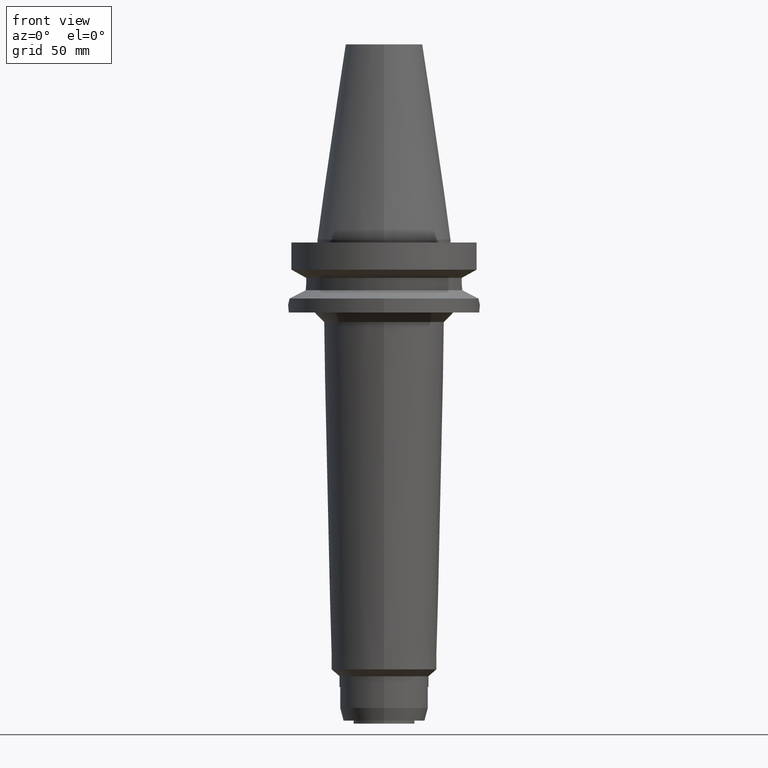
[diagram: clean part render]
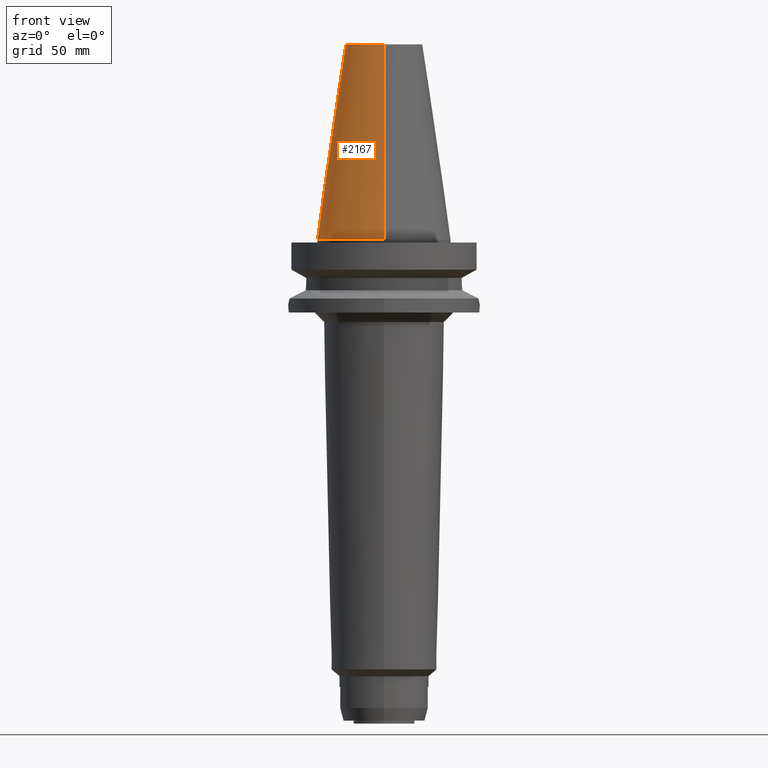
[diagram: same view with one face highlighted and labeled with its STEP entity id]
A machine part, front view. The second image highlights one B-rep face of the part: STEP entity #2167.
In plain terms, the highlighted conical surface has half-angle 8.297 deg.
Its self-contained STEP definition (entity closure, byte-faithful):
#1063=DIRECTION('',(0.E0,-1.443043893539E-1,-9.895333461856E-1));
#1064=VECTOR('',#1063,1.028767755957E2);
#1065=CARTESIAN_POINT('',(0.E0,-2.007942971896E1,1.018E2));
#1066=LINE('',#1065,#1064);
#1070=CARTESIAN_POINT('',(0.E0,1.847992019913E-14,3.979039320257E-13));
#1071=DIRECTION('',(0.E0,0.E0,-1.E0));
#1072=DIRECTION('',(0.E0,-1.E0,0.E0));
#1073=AXIS2_PLACEMENT_3D('',#1070,#1071,#1072);
#1078=DIRECTION('',(0.E0,1.443043893539E-1,-9.895333461856E-1));
#1079=VECTOR('',#1078,1.028767755957E2);
#1080=CARTESIAN_POINT('',(0.E0,2.007942971896E1,1.018E2));
#1081=LINE('',#1080,#1079);
#1093=CARTESIAN_POINT('',(0.E0,1.847992019913E-14,1.018E2));
#1094=DIRECTION('',(0.E0,0.E0,-1.E0));
#1095=DIRECTION('',(0.E0,-1.E0,0.E0));
#1096=AXIS2_PLACEMENT_3D('',#1093,#1094,#1095);
#1282=CARTESIAN_POINT('',(0.E0,3.4925E1,5.542233338929E-13));
#1283=VERTEX_POINT('',#1282);
#1284=CARTESIAN_POINT('',(0.E0,-3.4925E1,5.542233338929E-13));
#1285=VERTEX_POINT('',#1284);
#1286=CARTESIAN_POINT('',(0.E0,2.007942971896E1,1.018E2));
#1287=VERTEX_POINT('',#1286);
#1288=CARTESIAN_POINT('',(0.E0,-2.007942971896E1,1.018E2));
#1289=VERTEX_POINT('',#1288);
#2153=CARTESIAN_POINT('',(0.E0,1.847992019913E-14,5.09E1));
#2154=DIRECTION('',(0.E0,0.E0,-1.E0));
#2155=DIRECTION('',(0.E0,-1.E0,0.E0));
#2156=AXIS2_PLACEMENT_3D('',#2153,#2154,#2155);
#2157=CONICAL_SURFACE('',#2156,2.750221485948E1,8.297E0);
#2159=ORIENTED_EDGE('',*,*,#2158,.F.);
#2161=ORIENTED_EDGE('',*,*,#2160,.F.);
#2163=ORIENTED_EDGE('',*,*,#2162,.T.);
#2164=ORIENTED_EDGE('',*,*,#2146,.T.);
#2165=EDGE_LOOP('',(#2159,#2161,#2163,#2164));
#2166=FACE_OUTER_BOUND('',#2165,.F.);
#1074=CIRCLE('',#1073,3.4925E1);
#1097=CIRCLE('',#1096,2.007942971896E1);
#2146=EDGE_CURVE('',#1285,#1283,#1074,.T.);
#2158=EDGE_CURVE('',#1287,#1283,#1081,.T.);
#2160=EDGE_CURVE('',#1289,#1287,#1097,.T.);
#2162=EDGE_CURVE('',#1289,#1285,#1066,.T.);
#2167=ADVANCED_FACE('',(#2166),#2157,.T.);